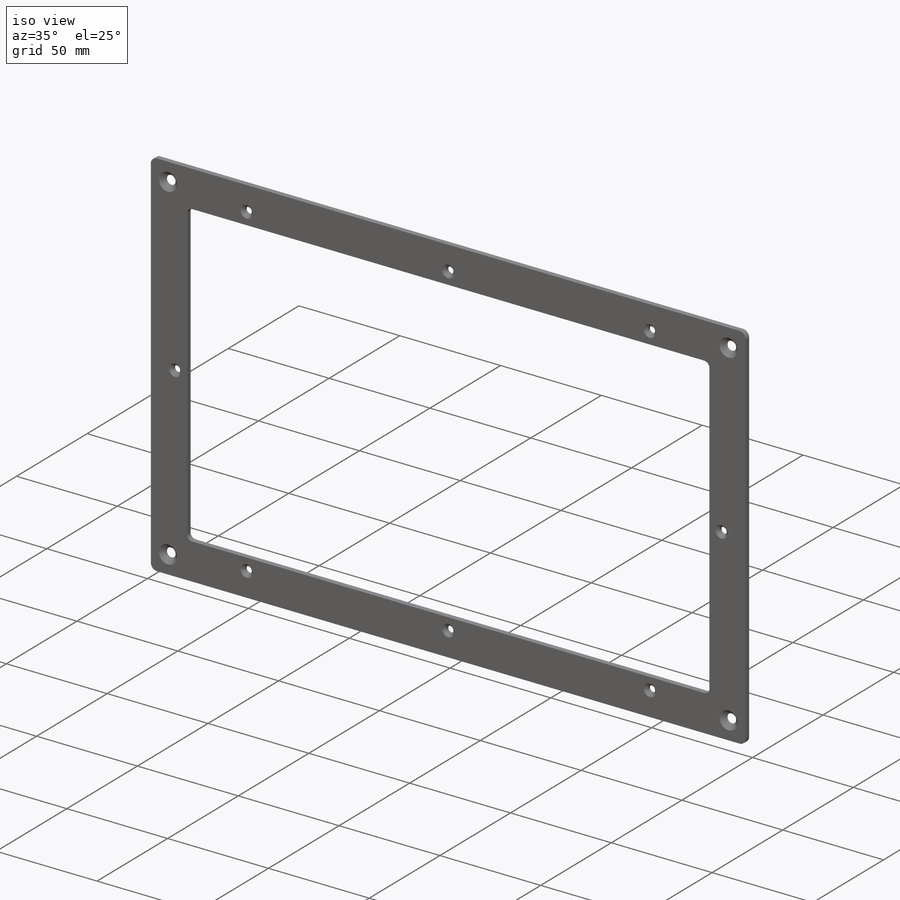
[diagram: iso view]
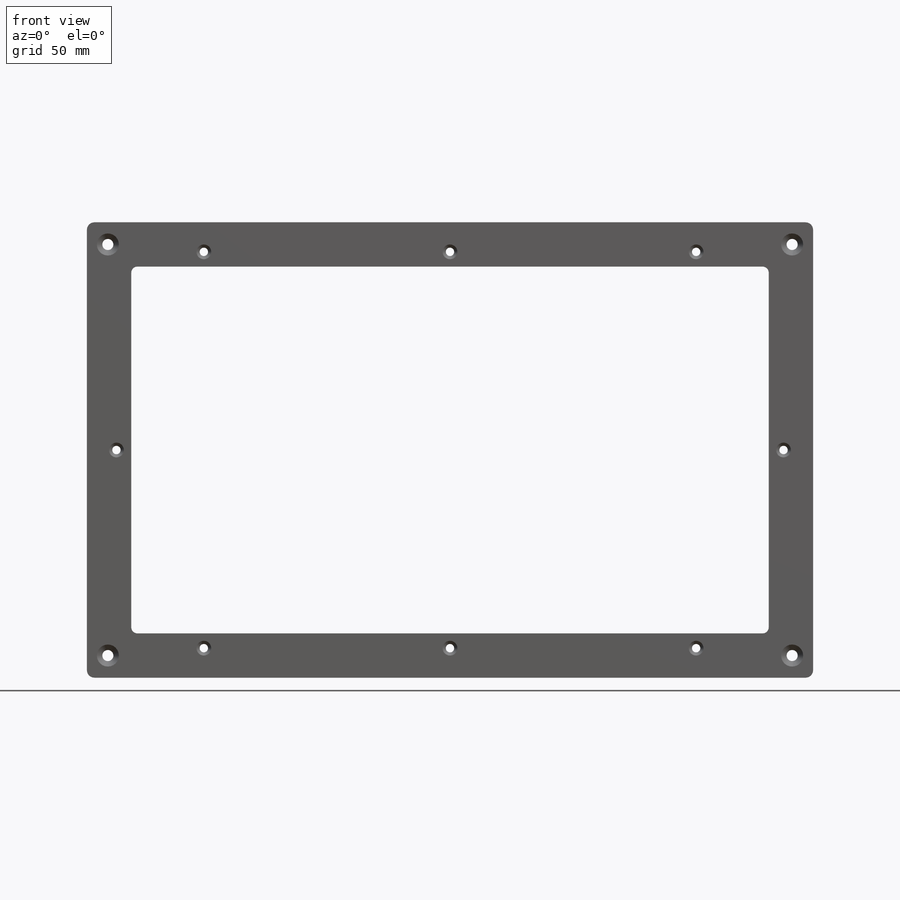
[diagram: front view]
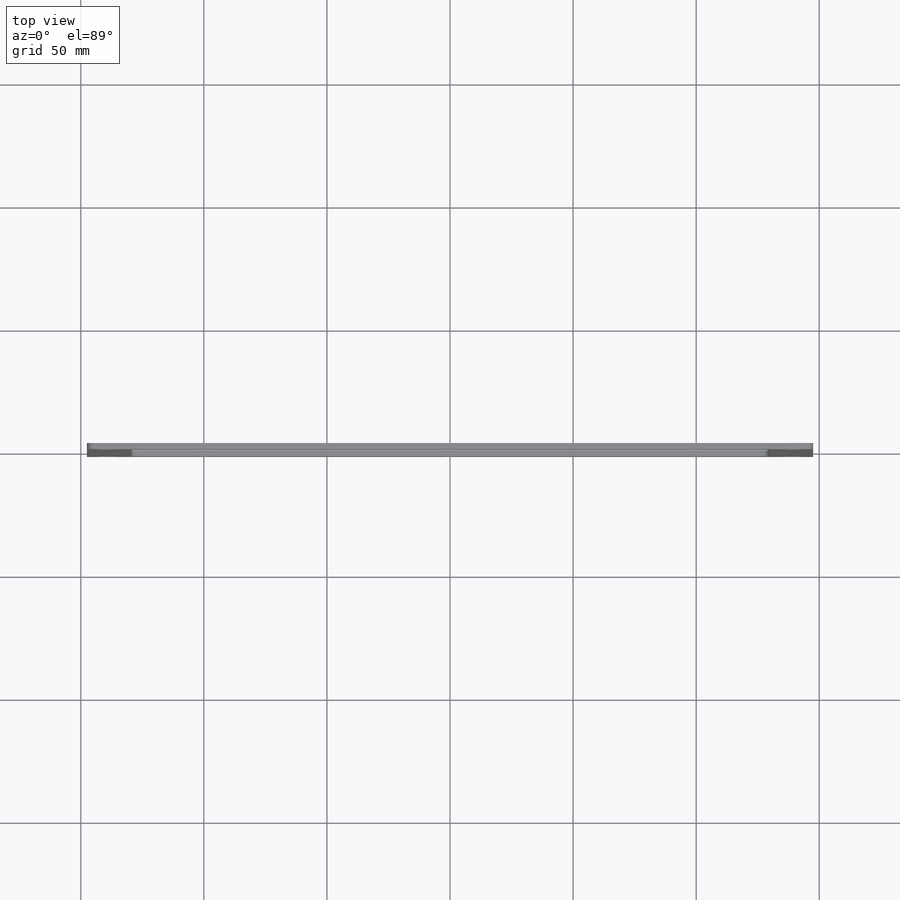
[diagram: top view]
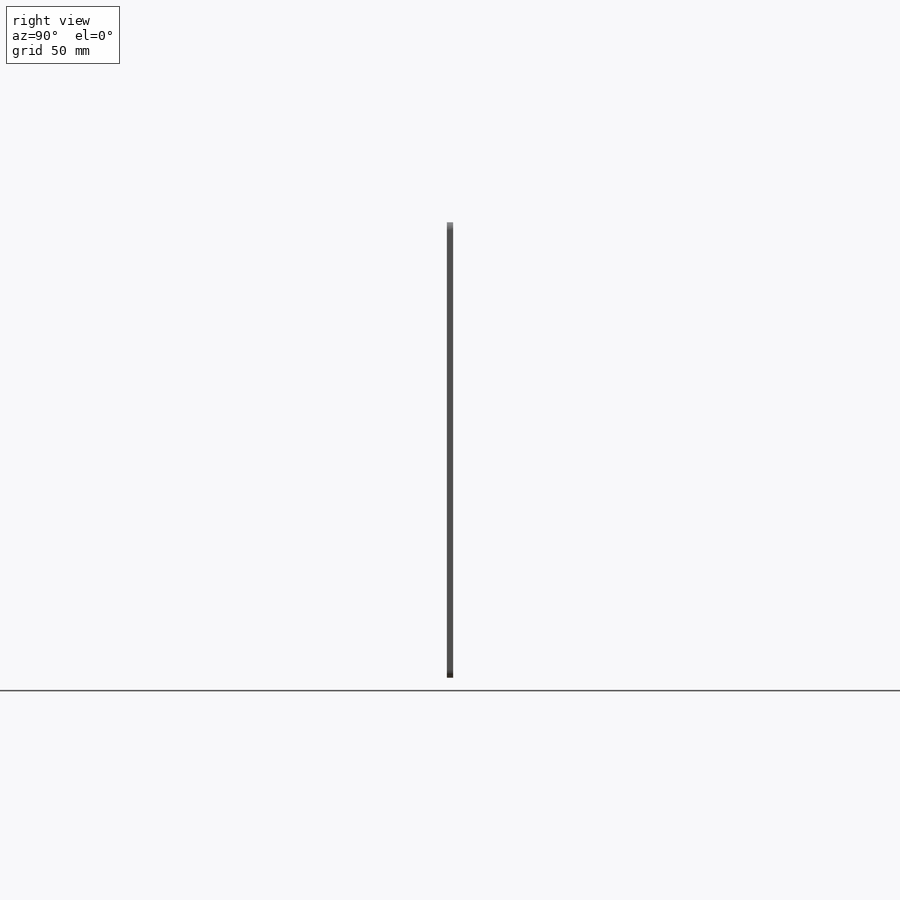
[diagram: right view]
SOLIDWORKS PART (.sldprt)
format: sldprt  version: not decoded by parser v0  size: 298,496 bytes
history: native  units: mm
features: sketch x6, mirror x3, hole x2, material x1, extrude x1, cut_extrude x1 (+12 scaffold rows collapsed)
feature tree (26):
  scaffold x12  (default folders/planes/origin — collapsed)
  material  "7079 Alloy"
  sketch  "Sketch1"  dims[D3=3.0mm D1=295.0mm D2=185.0mm]
  extrude  "Extrude1"  Depth=2.5mm
  sketch  "Sketch5"  dims[c1.D3=2.5mm c1.D1=18.0mm c1.D2=18.0mm c2.D3=17.0mm]
  cut_extrude  "Cut-Extrude4"  [1 undecoded]
  hole  "Escareado para SFHCS M41"  Diameter=4.5mm Depth=2.5mm
  sketch  "Esboço2"  dims[D1=8.5mm D2=9.0mm]
  sketch  "Esboço1"  dims[hole-wizard template sketch: 55 standard entries collapsed; hole parameters kept: c17.Thru Hole Depth=2.5mm c17.Near C'Sink Dia.=8.96mm c17.D4=~3.666174mm c17.Near C'Sink Angle=90.0deg]
  hole  "Furo com folga de M31"  Diameter=3.4mm Depth=2.5mm
  sketch  "Esboço4"  dims[D1=12.0mm D2=12.0mm D3=12.0mm D4=12.0mm D5=12.0mm D6=100.0mm D7=100.0mm]
  sketch  "Esboço3"  dims[hole-wizard template sketch: 55 standard entries collapsed; hole parameters kept: c17.Thru Hole Depth=2.5mm c17.Near C'Sink Dia.=6.0mm c17.D4=~3.666174mm c17.Near C'Sink Angle=90.0deg]
  mirror  "Espelhar1"
  mirror  "Espelhar2"
  mirror  "Espelhar3"
decode coverage: 9 of 13 modeling features carry decoded parameters
note: ~ marks probable driven/reference dimensions
note: 1 parameter value undecoded
note: suppression state not decoded; provenance and decode notes live in map.json
